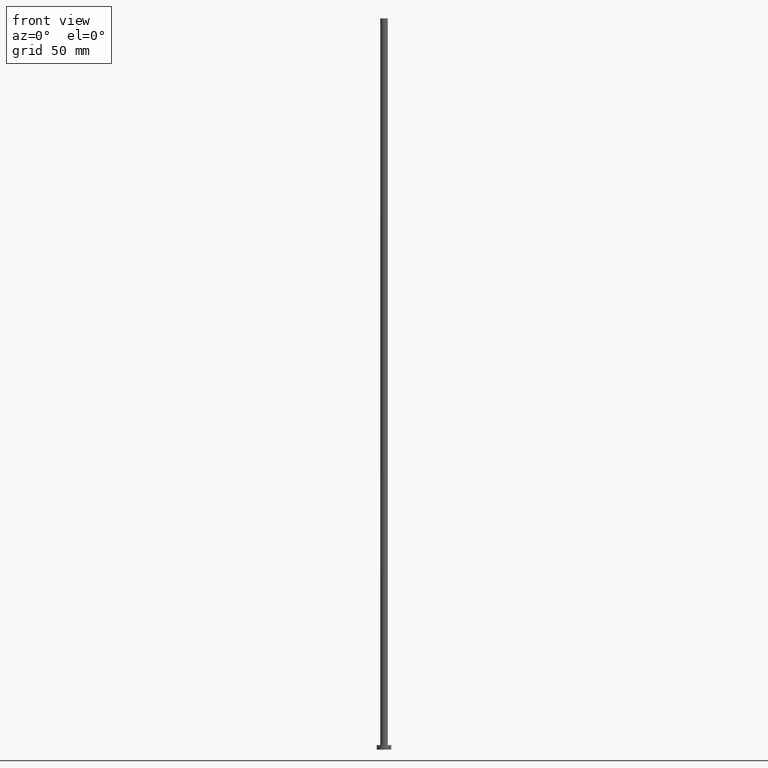
[diagram: clean part render]
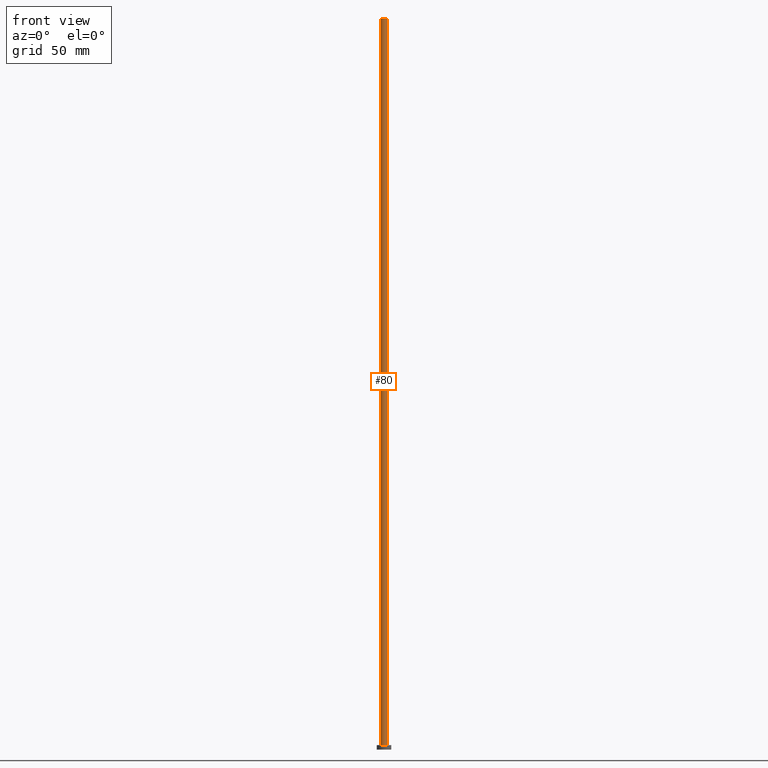
[diagram: same view with one face highlighted and labeled with its STEP entity id]
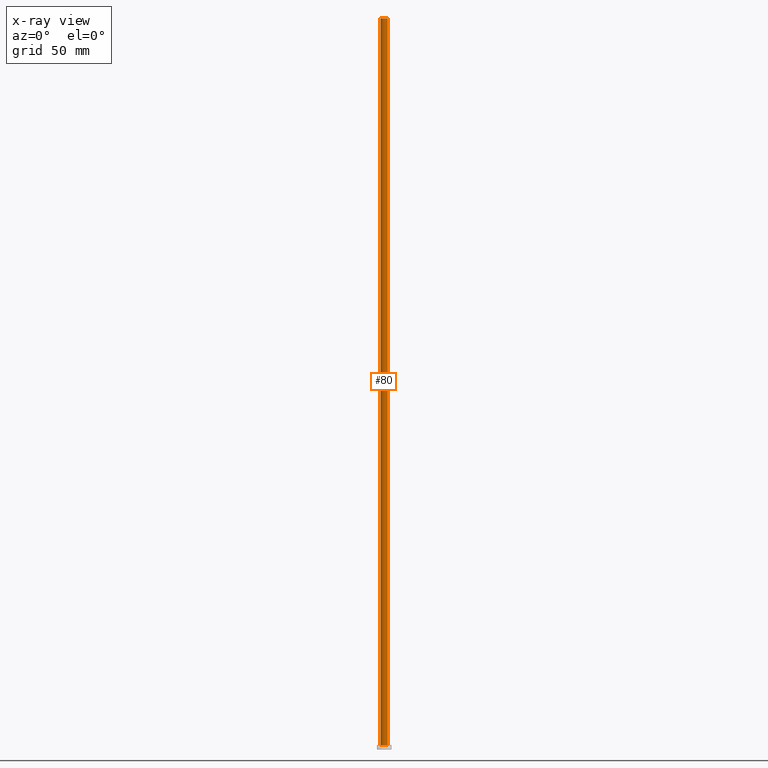
[diagram: x-ray of the same camera — body ghosted, the highlighted face saturated]
A machine part, front view. The second image highlights one B-rep face of the part: STEP entity #80.
The next image is the same camera in x-ray: the body ghosted, the highlighted face saturated — about 0% of this face is hidden behind the body in this view.
In plain terms, the highlighted cylindrical surface (edge-blend (fillet) strip) has radius 2.6 mm, axis along (-0, -0, -1).
Its self-contained STEP definition (entity closure, byte-faithful):
#4 = CYLINDRICAL_SURFACE ( 'NONE', #145, 2.600000000000000089 ) ;
#23 = CARTESIAN_POINT ( 'NONE',  ( 2.600000000000000089, 3.184081677783117698E-16, 500.0000000000000000 ) ) ;
#24 = CARTESIAN_POINT ( 'NONE',  ( 0.000000000000000000, 0.000000000000000000, 3.000000000000000000 ) ) ;
#30 = ORIENTED_EDGE ( 'NONE', *, *, #173, .T. ) ;
#34 = VERTEX_POINT ( 'NONE', #132 ) ;
#41 = ORIENTED_EDGE ( 'NONE', *, *, #73, .F. ) ;
#45 = DIRECTION ( 'NONE',  ( -0.000000000000000000, -0.000000000000000000, -1.000000000000000000 ) ) ;
#46 = CARTESIAN_POINT ( 'NONE',  ( -2.600000000000000089, 0.000000000000000000, 500.0000000000000000 ) ) ;
#55 = VERTEX_POINT ( 'NONE', #190 ) ;
#68 = AXIS2_PLACEMENT_3D ( 'NONE', #174, #252, #186 ) ;
#73 = EDGE_CURVE ( 'NONE', #55, #93, #219, .T. ) ;
#78 = EDGE_LOOP ( 'NONE', ( #109, #41, #210, #30 ) ) ;
#80 = ADVANCED_FACE ( 'NONE', ( #215 ), #4, .T. ) ;
#83 = LINE ( 'NONE', #160, #87 ) ;
#84 = DIRECTION ( 'NONE',  ( -1.000000000000000000, 0.000000000000000000, 0.000000000000000000 ) ) ;
#87 = VECTOR ( 'NONE', #156, 1000.000000000000000 ) ;
#93 = VERTEX_POINT ( 'NONE', #23 ) ;
#95 = AXIS2_PLACEMENT_3D ( 'NONE', #24, #197, #102 ) ;
#102 = DIRECTION ( 'NONE',  ( 1.000000000000000000, 0.000000000000000000, 0.000000000000000000 ) ) ;
#109 = ORIENTED_EDGE ( 'NONE', *, *, #238, .F. ) ;
#124 = LINE ( 'NONE', #46, #240 ) ;
#132 = CARTESIAN_POINT ( 'NONE',  ( 2.600000000000000089, 3.184081677783117698E-16, 3.000000000000000000 ) ) ;
#140 = DIRECTION ( 'NONE',  ( -0.000000000000000000, -0.000000000000000000, -1.000000000000000000 ) ) ;
#145 = AXIS2_PLACEMENT_3D ( 'NONE', #195, #140, #84 ) ;
#156 = DIRECTION ( 'NONE',  ( -0.000000000000000000, -0.000000000000000000, -1.000000000000000000 ) ) ;
#160 = CARTESIAN_POINT ( 'NONE',  ( 2.600000000000000089, 3.184081677783117698E-16, 500.0000000000000000 ) ) ;
#173 = EDGE_CURVE ( 'NONE', #207, #34, #216, .T. ) ;
#174 = CARTESIAN_POINT ( 'NONE',  ( 0.000000000000000000, 0.000000000000000000, 500.0000000000000000 ) ) ;
#186 = DIRECTION ( 'NONE',  ( 1.000000000000000000, 0.000000000000000000, 0.000000000000000000 ) ) ;
#190 = CARTESIAN_POINT ( 'NONE',  ( -2.600000000000000089, 0.000000000000000000, 500.0000000000000000 ) ) ;
#195 = CARTESIAN_POINT ( 'NONE',  ( 0.000000000000000000, 0.000000000000000000, 500.0000000000000000 ) ) ;
#197 = DIRECTION ( 'NONE',  ( 0.000000000000000000, 0.000000000000000000, 1.000000000000000000 ) ) ;
#207 = VERTEX_POINT ( 'NONE', #234 ) ;
#208 = EDGE_CURVE ( 'NONE', #55, #207, #124, .T. ) ;
#210 = ORIENTED_EDGE ( 'NONE', *, *, #208, .T. ) ;
#215 = FACE_OUTER_BOUND ( 'NONE', #78, .T. ) ;
#216 = CIRCLE ( 'NONE', #95, 2.600000000000000089 ) ;
#219 = CIRCLE ( 'NONE', #68, 2.600000000000000089 ) ;
#234 = CARTESIAN_POINT ( 'NONE',  ( -2.600000000000000089, 0.000000000000000000, 3.000000000000000000 ) ) ;
#238 = EDGE_CURVE ( 'NONE', #93, #34, #83, .T. ) ;
#240 = VECTOR ( 'NONE', #45, 1000.000000000000000 ) ;
#252 = DIRECTION ( 'NONE',  ( 0.000000000000000000, 0.000000000000000000, 1.000000000000000000 ) ) ;